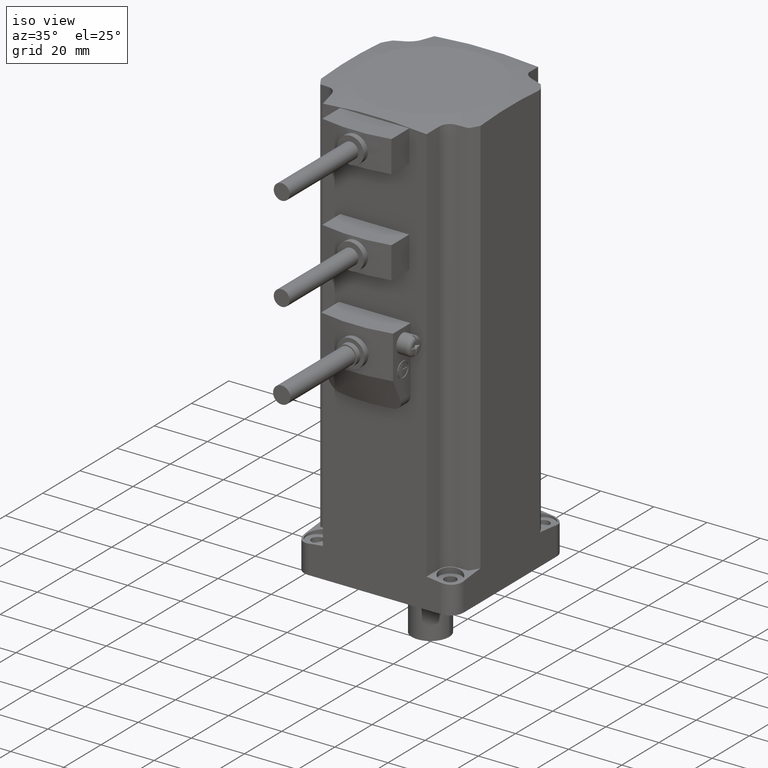
[diagram: clean part render]
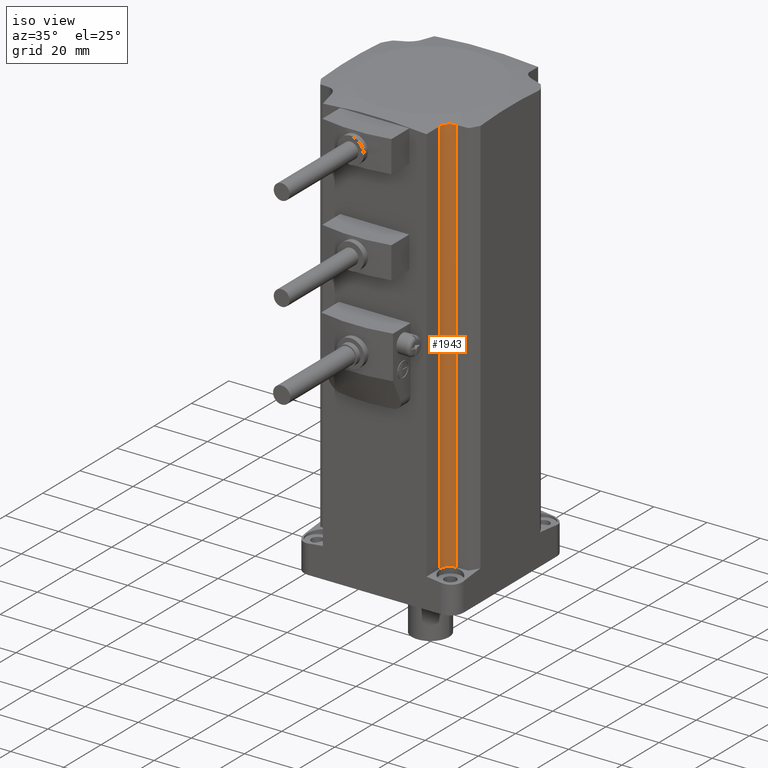
[diagram: same view with one face highlighted and labeled with its STEP entity id]
A machine part, iso view. The second image highlights one B-rep face of the part: STEP entity #1943.
In plain terms, the highlighted cylindrical surface (edge-blend (fillet) strip) has radius 4.7 mm, axis along (0, 0, 1).
Its self-contained STEP definition (entity closure, byte-faithful):
#263 = ORIENTED_EDGE ( 'NONE', *, *, #1198, .F. ) ;
#459 = DIRECTION ( 'NONE',  ( 0.0000000000000000000, 0.0000000000000000000, 1.000000000000000000 ) ) ;
#563 = CARTESIAN_POINT ( 'NONE',  ( 20.35169063421636793, -24.30485969763789100, 12.02352292522132515 ) ) ;
#617 = EDGE_CURVE ( 'NONE', #3422, #1242, #2030, .T. ) ;
#686 = CARTESIAN_POINT ( 'NONE',  ( 22.82487938245439807, -20.82712145002982140, 162.6675131772108216 ) ) ;
#760 = ORIENTED_EDGE ( 'NONE', *, *, #617, .F. ) ;
#834 = CARTESIAN_POINT ( 'NONE',  ( 20.35169063421636082, -24.30485969763789456, 162.5403774523720131 ) ) ;
#1025 = DIRECTION ( 'NONE',  ( 0.0000000000000000000, 0.0000000000000000000, 1.000000000000000000 ) ) ;
#1080 = CARTESIAN_POINT ( 'NONE',  ( 23.92293928564299677, -20.42507484021992070, -0.002000000000000265454 ) ) ;
#1153 = CARTESIAN_POINT ( 'NONE',  ( 23.47157318697102113, -20.54928869441243222, 162.6208401639850365 ) ) ;
#1198 = EDGE_CURVE ( 'NONE', #4502, #4092, #2278, .T. ) ;
#1242 = VERTEX_POINT ( 'NONE', #4630 ) ;
#1394 = CARTESIAN_POINT ( 'NONE',  ( 20.57532909523768438, -23.39779053458913083, 12.11002755606966730 ) ) ;
#1406 = CARTESIAN_POINT ( 'NONE',  ( 23.92293928564299321, -20.42507484021991715, 162.5794343978504628 ) ) ;
#1489 = CARTESIAN_POINT ( 'NONE',  ( 20.85877434596239155, -22.76505428626988348, 162.6710776763892738 ) ) ;
#1624 = VECTOR ( 'NONE', #1025, 1000.000000000000000 ) ;
#1778 = EDGE_LOOP ( 'NONE', ( #760, #4144, #263, #5086 ) ) ;
#1781 = CARTESIAN_POINT ( 'NONE',  ( 20.97741685580495741, -22.55803658524040856, 12.16540343103148736 ) ) ;
#1810 = CARTESIAN_POINT ( 'NONE',  ( 21.87220896912657864, -21.48417442890221096, 12.18805608893544168 ) ) ;
#1855 = CARTESIAN_POINT ( 'NONE',  ( 21.86917713891375215, -21.48682959048260344, 162.7049582623950812 ) ) ;
#1877 = CARTESIAN_POINT ( 'NONE',  ( 20.97604220666170960, -22.56036250091045048, 162.6821376141851658 ) ) ;
#1896 = LINE ( 'NONE', #4701, #1624 ) ;
#1900 = CARTESIAN_POINT ( 'NONE',  ( 21.23649617883508256, -22.17509178244514700, 162.6979274980697880 ) ) ;
#1943 = ADVANCED_FACE ( 'NONE', ( #4813 ), #2091, .F. ) ;
#2029 = AXIS2_PLACEMENT_3D ( 'NONE', #2435, #459, #2848 ) ;
#2030 = B_SPLINE_CURVE_WITH_KNOTS ( 'NONE', 3,
 ( #2311, #2707, #2592, #4157, #2652, #1810, #3788, #4186, #4214, #1781, #4556, #2538, #1394, #3432, #2170, #563 ),
 .UNSPECIFIED., .F., .F.,
 ( 4, 2, 2, 2, 2, 2, 2, 4 ),
 ( 2.034718269029054255E-07, 0.001394246401187705696, 0.002091267865868111538, 0.002788289330548518030, 0.003485310795228923654, 0.004182332259909329712, 0.004879353724589736638, 0.005576375189270142696 ),
 .UNSPECIFIED. ) ;
#2091 = CYLINDRICAL_SURFACE ( 'NONE', #2029, 4.699999999999999289 ) ;
#2170 = CARTESIAN_POINT ( 'NONE',  ( 20.38634950184856720, -24.07310052833814140, 12.04847590277953273 ) ) ;
#2178 = VECTOR ( 'NONE', #4703, 1000.000000000000000 ) ;
#2278 = B_SPLINE_CURVE_WITH_KNOTS ( 'NONE', 3,
 ( #5036, #2716, #2741, #1489, #1877, #1900, #3077, #5089, #1855, #4728, #4305, #686, #3905, #1153, #4679, #4704 ),
 .UNSPECIFIED., .F., .F.,
 ( 4, 2, 2, 2, 2, 2, 2, 4 ),
 ( 2.005093149476579598E-07, 0.001394261690890256835, 0.002091292281677918207, 0.002788322872465580013, 0.003485353463253240951, 0.004182384054040902757, 0.004879414644828564997, 0.005576445235616227236 ),
 .UNSPECIFIED. ) ;
#2311 = CARTESIAN_POINT ( 'NONE',  ( 23.92293928564298966, -20.42507484021992070, 12.06257987071035664 ) ) ;
#2435 = CARTESIAN_POINT ( 'NONE',  ( 25.00000000000000355, -24.99999999999999645, -0.002000000000000265454 ) ) ;
#2538 = CARTESIAN_POINT ( 'NONE',  ( 20.66108622905230163, -23.17850976083004966, 12.12692308550970743 ) ) ;
#2592 = CARTESIAN_POINT ( 'NONE',  ( 23.03566414245960203, -20.70457463329251979, 12.13949543252662977 ) ) ;
#2652 = CARTESIAN_POINT ( 'NONE',  ( 22.23464627608700184, -21.19251724090077360, 12.17910255446692958 ) ) ;
#2707 = CARTESIAN_POINT ( 'NONE',  ( 23.46619104418408241, -20.53260568936952524, 12.10678219064000949 ) ) ;
#2716 = CARTESIAN_POINT ( 'NONE',  ( 20.42100617574460486, -23.84135602825596933, 162.5902818280861197 ) ) ;
#2741 = CARTESIAN_POINT ( 'NONE',  ( 20.55656227849288342, -23.39850374368010932, 162.6291676634457986 ) ) ;
#2848 = DIRECTION ( 'NONE',  ( 1.000000000000000000, 0.0000000000000000000, 0.0000000000000000000 ) ) ;
#2961 = EDGE_CURVE ( 'NONE', #1242, #4502, #1896, .T. ) ;
#3077 = CARTESIAN_POINT ( 'NONE',  ( 21.38045631667840851, -21.99278245773423279, 162.7027784408868456 ) ) ;
#3422 = VERTEX_POINT ( 'NONE', #3639 ) ;
#3432 = CARTESIAN_POINT ( 'NONE',  ( 20.43803236894506270, -23.84534025803733570, 12.07076269842511351 ) ) ;
#3639 = CARTESIAN_POINT ( 'NONE',  ( 23.92293928564298966, -20.42507484021992070, 12.06257987071035664 ) ) ;
#3788 = CARTESIAN_POINT ( 'NONE',  ( 21.70244781636106524, -21.64282549631617059, 12.18946141084840029 ) ) ;
#3905 = CARTESIAN_POINT ( 'NONE',  ( 23.03641596833152150, -20.72340586458715705, 162.6538717174171040 ) ) ;
#4092 = VERTEX_POINT ( 'NONE', #1406 ) ;
#4144 = ORIENTED_EDGE ( 'NONE', *, *, #4302, .T. ) ;
#4157 = CARTESIAN_POINT ( 'NONE',  ( 22.42896985185191028, -21.05860080836044546, 12.17146109506833440 ) ) ;
#4186 = CARTESIAN_POINT ( 'NONE',  ( 21.38607270308700592, -21.98603242475406816, 12.18606731518490172 ) ) ;
#4214 = CARTESIAN_POINT ( 'NONE',  ( 21.23884895731425715, -22.17190818658757223, 12.18117806855656404 ) ) ;
#4302 = EDGE_CURVE ( 'NONE', #3422, #4092, #4330, .T. ) ;
#4305 = CARTESIAN_POINT ( 'NONE',  ( 22.42362623355334605, -21.06218800483840070, 162.6885378116797938 ) ) ;
#4330 = LINE ( 'NONE', #1080, #2178 ) ;
#4502 = VERTEX_POINT ( 'NONE', #834 ) ;
#4556 = CARTESIAN_POINT ( 'NONE',  ( 20.86192486730650231, -22.75938990467002299, 12.15454118289020080 ) ) ;
#4630 = CARTESIAN_POINT ( 'NONE',  ( 20.35169063421636793, -24.30485969763789100, 12.02352292522132515 ) ) ;
#4679 = CARTESIAN_POINT ( 'NONE',  ( 23.69454823142540079, -20.47884425139431741, 162.6015371965725080 ) ) ;
#4701 = CARTESIAN_POINT ( 'NONE',  ( 20.35169063421636082, -24.30485969763789100, -0.002000000000000265454 ) ) ;
#4703 = DIRECTION ( 'NONE',  ( 0.0000000000000000000, 0.0000000000000000000, 1.000000000000000000 ) ) ;
#4704 = CARTESIAN_POINT ( 'NONE',  ( 23.92293928564299321, -20.42507484021991715, 162.5794343978504628 ) ) ;
#4728 = CARTESIAN_POINT ( 'NONE',  ( 22.23244869351902864, -21.19407332180394121, 162.6960382316474920 ) ) ;
#4813 = FACE_OUTER_BOUND ( 'NONE', #1778, .T. ) ;
#5036 = CARTESIAN_POINT ( 'NONE',  ( 20.35169063421636082, -24.30485969763789456, 162.5403774523720131 ) ) ;
#5086 = ORIENTED_EDGE ( 'NONE', *, *, #2961, .F. ) ;
#5089 = CARTESIAN_POINT ( 'NONE',  ( 21.69613781947032294, -21.64903767343619734, 162.7063283122999167 ) ) ;